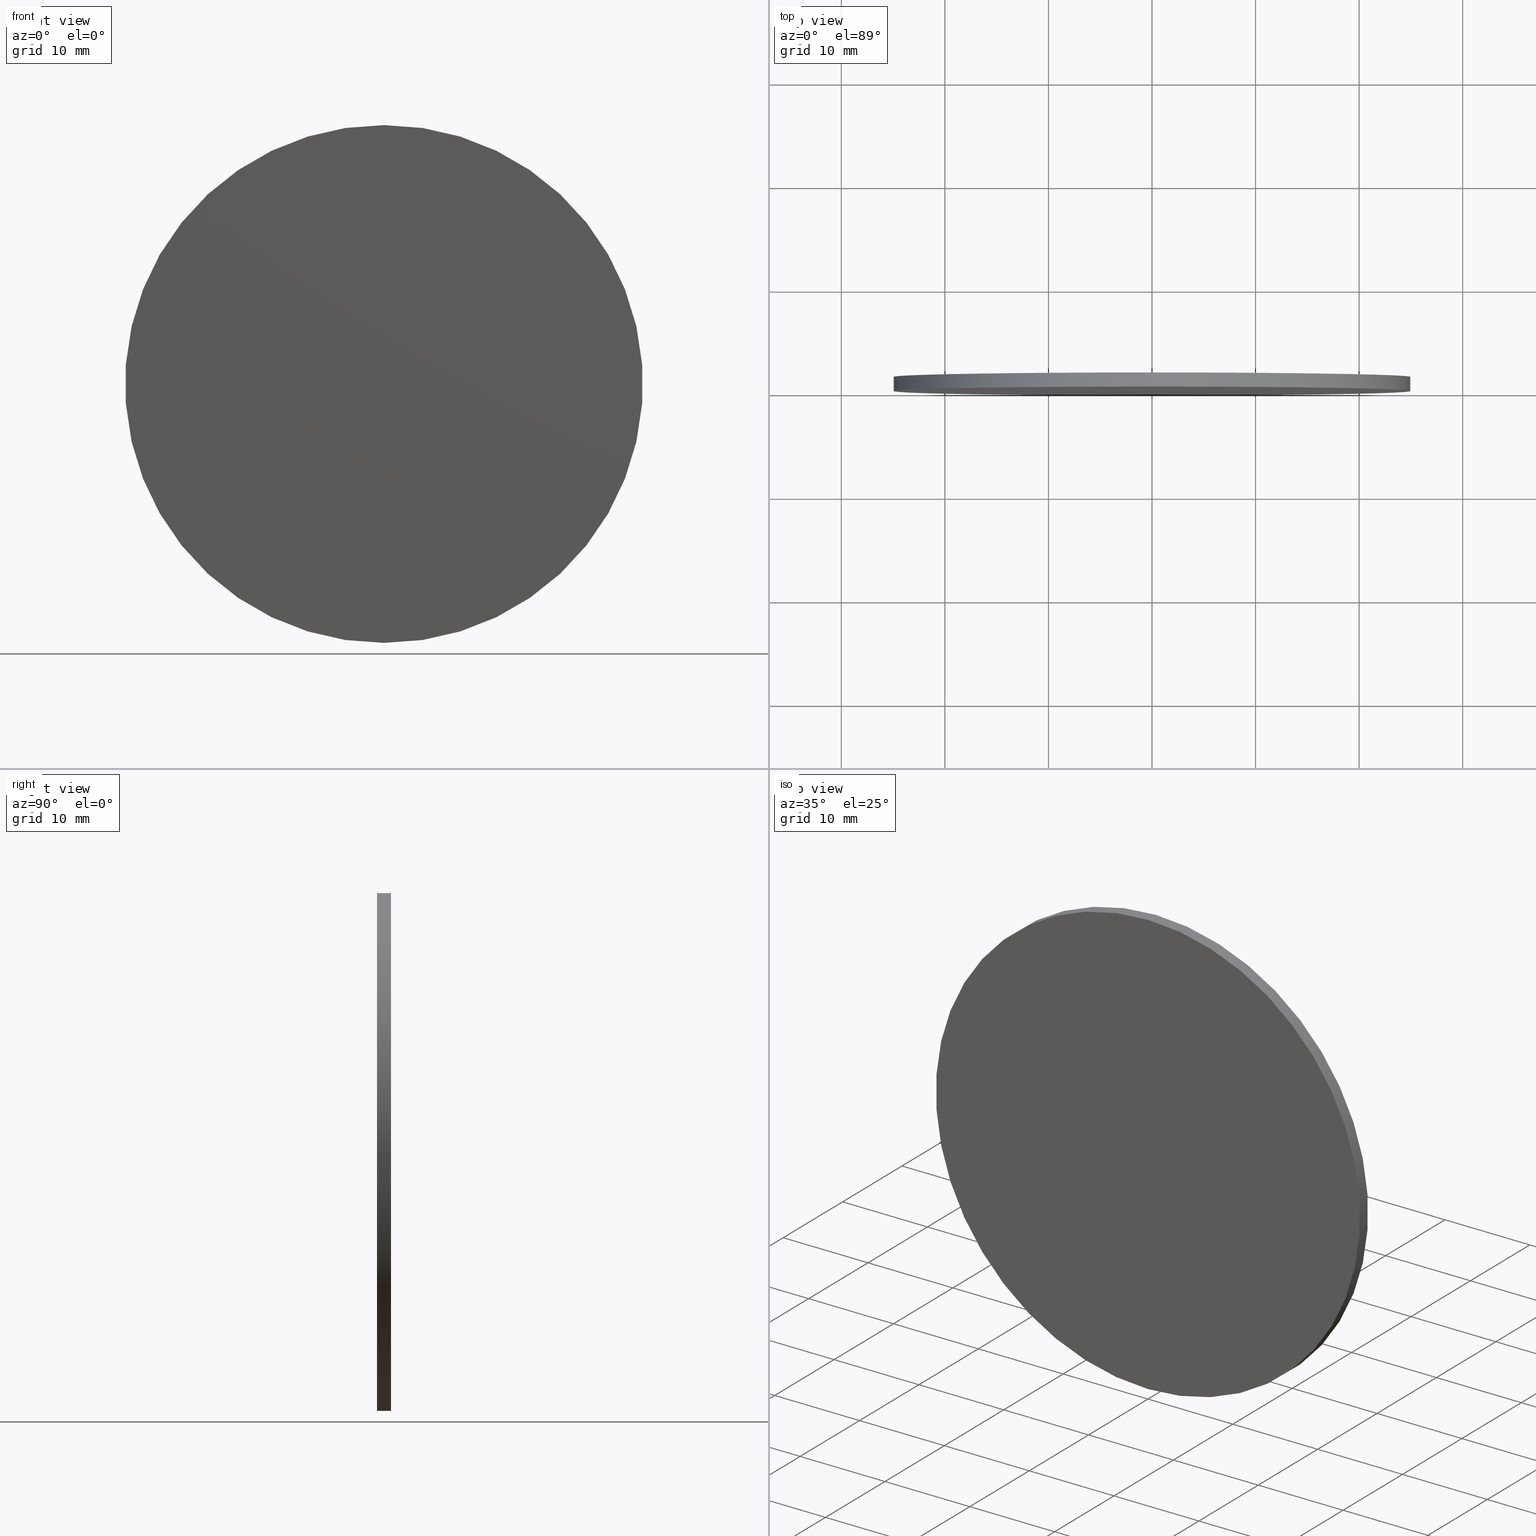
[diagram: canonical four-view strip — front | top / right | iso, engineering-drawing reading convention]
A machine part, canonical four-view strip (front | top / right | iso — engineering-drawing reading convention). The complete STEP part file that produces these views, byte-faithful:
ISO-10303-21;
HEADER;
FILE_DESCRIPTION (( 'STEP AP214' ),
    '1' );
FILE_NAME ('248598.STEP',
    '2019-08-06T05:23:08',
    ( 'user' ),
    ( '΢���й�' ),
    'SwSTEP 2.0',
    'SolidWorks 2016',
    '' );
FILE_SCHEMA (( 'AUTOMOTIVE_DESIGN' ));
ENDSEC;

DATA;
#1 = SURFACE_STYLE_USAGE ( .BOTH. , #41 ) ;
#2 = DIRECTION ( 'NONE',  ( 0.0000000000000000000, 0.0000000000000000000, -1.000000000000000000 ) ) ;
#3 = PRODUCT_DEFINITION_FORMATION_WITH_SPECIFIED_SOURCE ( '�κ�', '', #25, .NOT_KNOWN. ) ;
#4 =( LENGTH_UNIT ( ) NAMED_UNIT ( * ) SI_UNIT ( .MILLI., .METRE. ) );
#5 = AXIS2_PLACEMENT_3D ( 'NONE', #122, #13, #2 ) ;
#6 = ORIENTED_EDGE ( 'NONE', *, *, #52, .F. ) ;
#7 = DIRECTION ( 'NONE',  ( 0.0000000000000000000, 0.0000000000000000000, 1.000000000000000000 ) ) ;
#8 = EDGE_CURVE ( 'NONE', #28, #107, #33, .T. ) ;
#9 = DIRECTION ( 'NONE',  ( 0.0000000000000000000, 0.0000000000000000000, 1.000000000000000000 ) ) ;
#10 = ADVANCED_FACE ( 'NONE', ( #102 ), #108, .T. ) ;
#11 = FACE_OUTER_BOUND ( 'NONE', #50, .T. ) ;
#12 = AXIS2_PLACEMENT_3D ( 'NONE', #136, #95, #35 ) ;
#13 = DIRECTION ( 'NONE',  ( -0.0000000000000000000, -1.000000000000000000, -0.0000000000000000000 ) ) ;
#14 =( NAMED_UNIT ( * ) PLANE_ANGLE_UNIT ( ) SI_UNIT ( $, .RADIAN. ) );
#15 = DIRECTION ( 'NONE',  ( 0.0000000000000000000, 0.0000000000000000000, -1.000000000000000000 ) ) ;
#16 =( NAMED_UNIT ( * ) SI_UNIT ( $, .STERADIAN. ) SOLID_ANGLE_UNIT ( ) );
#17 = PRESENTATION_STYLE_ASSIGNMENT (( #72 ) ) ;
#18 = CIRCLE ( 'NONE', #92, 25.00000000000000000 ) ;
#19 = ADVANCED_FACE ( 'NONE', ( #11 ), #38, .F. ) ;
#20 = DIRECTION ( 'NONE',  ( 0.0000000000000000000, 1.000000000000000000, 0.0000000000000000000 ) ) ;
#21 = CARTESIAN_POINT ( 'NONE',  ( 0.0000000000000000000, 0.0000000000000000000, -25.00000000000000000 ) ) ;
#22 = LINE ( 'NONE', #75, #49 ) ;
#23 = APPLICATION_CONTEXT ( 'automotive_design' ) ;
#24 = APPLICATION_PROTOCOL_DEFINITION ( 'draft international standard', 'automotive_design', 1998, #32 ) ;
#25 = PRODUCT ( '248598', '248598', '', ( #126 ) ) ;
#26 = DIRECTION ( 'NONE',  ( 0.0000000000000000000, -0.0000000000000000000, 1.000000000000000000 ) ) ;
#27 = MECHANICAL_DESIGN_GEOMETRIC_PRESENTATION_REPRESENTATION (  '', ( #98 ), #69 ) ;
#28 = VERTEX_POINT ( 'NONE', #129 ) ;
#29 = MANIFOLD_SOLID_BREP ( '͹̨-����1', #54 ) ;
#30 = CYLINDRICAL_SURFACE ( 'NONE', #5, 25.00000000000000000 ) ;
#31 = DIRECTION ( 'NONE',  ( 0.0000000000000000000, 1.000000000000000000, 0.0000000000000000000 ) ) ;
#32 = APPLICATION_CONTEXT ( 'automotive_design' ) ;
#33 = CIRCLE ( 'NONE', #111, 25.00000000000000000 ) ;
#34 = APPLICATION_PROTOCOL_DEFINITION ( 'draft international standard', 'automotive_design', 1998, #23 ) ;
#35 = DIRECTION ( 'NONE',  ( 1.000000000000000000, 0.0000000000000000000, 0.0000000000000000000 ) ) ;
#36 = ORIENTED_EDGE ( 'NONE', *, *, #8, .T. ) ;
#37 = PRESENTATION_LAYER_ASSIGNMENT (  '', '', ( #98 ) ) ;
#38 = PLANE ( 'NONE',  #76 ) ;
#39 = DIRECTION ( 'NONE',  ( 0.0000000000000000000, 0.0000000000000000000, 1.000000000000000000 ) ) ;
#40 = ADVANCED_BREP_SHAPE_REPRESENTATION ( '248598', ( #29, #12 ), #60 ) ;
#41 = SURFACE_SIDE_STYLE ('',( #58 ) ) ;
#42 =( NAMED_UNIT ( * ) PLANE_ANGLE_UNIT ( ) SI_UNIT ( $, .RADIAN. ) );
#43 = COLOUR_RGB ( '',1.000000000000000000, 1.000000000000000000, 1.000000000000000000 ) ;
#44 = PRESENTATION_STYLE_ASSIGNMENT (( #1 ) ) ;
#45 = UNCERTAINTY_MEASURE_WITH_UNIT (LENGTH_MEASURE( 1.000000000000000100E-005 ), #132, 'distance_accuracy_value', 'NONE');
#46 = FILL_AREA_STYLE ('',( #73 ) ) ;
#47 = CARTESIAN_POINT ( 'NONE',  ( 0.0000000000000000000, 0.0000000000000000000, 0.0000000000000000000 ) ) ;
#48 = ORIENTED_EDGE ( 'NONE', *, *, #115, .F. ) ;
#49 = VECTOR ( 'NONE', #80, 1000.000000000000000 ) ;
#50 = EDGE_LOOP ( 'NONE', ( #56, #135 ) ) ;
#51 = PLANE ( 'NONE',  #137 ) ;
#52 = EDGE_CURVE ( 'NONE', #93, #28, #22, .T. ) ;
#53 = EDGE_LOOP ( 'NONE', ( #71, #62 ) ) ;
#54 = CLOSED_SHELL ( 'NONE', ( #79, #10, #123, #19 ) ) ;
#55 = CARTESIAN_POINT ( 'NONE',  ( 0.0000000000000000000, 1.360000000000000100, 0.0000000000000000000 ) ) ;
#56 = ORIENTED_EDGE ( 'NONE', *, *, #105, .F. ) ;
#57 = DIRECTION ( 'NONE',  ( 0.0000000000000000000, 0.0000000000000000000, 1.000000000000000000 ) ) ;
#58 = SURFACE_STYLE_FILL_AREA ( #46 ) ;
#59 = CARTESIAN_POINT ( 'NONE',  ( 0.0000000000000000000, 1.360000000000000100, -25.00000000000000000 ) ) ;
#60 =( GEOMETRIC_REPRESENTATION_CONTEXT ( 3 ) GLOBAL_UNCERTAINTY_ASSIGNED_CONTEXT ( ( #104 ) ) GLOBAL_UNIT_ASSIGNED_CONTEXT ( ( #4, #42, #16 ) ) REPRESENTATION_CONTEXT ( 'NONE', 'WORKASPACE' ) );
#61 =( NAMED_UNIT ( * ) PLANE_ANGLE_UNIT ( ) SI_UNIT ( $, .RADIAN. ) );
#62 = ORIENTED_EDGE ( 'NONE', *, *, #121, .T. ) ;
#63 = VECTOR ( 'NONE', #128, 1000.000000000000000 ) ;
#64 = CARTESIAN_POINT ( 'NONE',  ( 0.0000000000000000000, 1.360000000000000100, 0.0000000000000000000 ) ) ;
#65 = PRODUCT_DEFINITION_SHAPE ( 'NONE', 'NONE',  #130 ) ;
#66 = SURFACE_SIDE_STYLE ('',( #81 ) ) ;
#67 = ORIENTED_EDGE ( 'NONE', *, *, #105, .T. ) ;
#68 = PRESENTATION_LAYER_ASSIGNMENT (  '', '', ( #117 ) ) ;
#69 =( GEOMETRIC_REPRESENTATION_CONTEXT ( 3 ) GLOBAL_UNCERTAINTY_ASSIGNED_CONTEXT ( ( #94 ) ) GLOBAL_UNIT_ASSIGNED_CONTEXT ( ( #120, #14, #106 ) ) REPRESENTATION_CONTEXT ( 'NONE', 'WORKASPACE' ) );
#70 = CARTESIAN_POINT ( 'NONE',  ( 0.0000000000000000000, 1.360000000000000100, 0.0000000000000000000 ) ) ;
#71 = ORIENTED_EDGE ( 'NONE', *, *, #127, .T. ) ;
#72 = SURFACE_STYLE_USAGE ( .BOTH. , #66 ) ;
#73 = FILL_AREA_STYLE_COLOUR ( '', #131 ) ;
#74 = CARTESIAN_POINT ( 'NONE',  ( 0.0000000000000000000, 0.0000000000000000000, 0.0000000000000000000 ) ) ;
#75 = CARTESIAN_POINT ( 'NONE',  ( 3.061616997868383000E-015, 1.360000000000000100, 25.00000000000000000 ) ) ;
#76 = AXIS2_PLACEMENT_3D ( 'NONE', #74, #114, #26 ) ;
#77 = DIRECTION ( 'NONE',  ( 0.0000000000000000000, -0.0000000000000000000, 1.000000000000000000 ) ) ;
#78 = DIRECTION ( 'NONE',  ( 0.0000000000000000000, 1.000000000000000000, 0.0000000000000000000 ) ) ;
#79 = ADVANCED_FACE ( 'NONE', ( #124 ), #30, .T. ) ;
#80 = DIRECTION ( 'NONE',  ( -0.0000000000000000000, -1.000000000000000000, -0.0000000000000000000 ) ) ;
#81 = SURFACE_STYLE_FILL_AREA ( #134 ) ;
#82 =( GEOMETRIC_REPRESENTATION_CONTEXT ( 3 ) GLOBAL_UNCERTAINTY_ASSIGNED_CONTEXT ( ( #45 ) ) GLOBAL_UNIT_ASSIGNED_CONTEXT ( ( #132, #61, #89 ) ) REPRESENTATION_CONTEXT ( 'NONE', 'WORKASPACE' ) );
#83 = AXIS2_PLACEMENT_3D ( 'NONE', #103, #78, #39 ) ;
#84 = SHAPE_DEFINITION_REPRESENTATION ( #65, #40 ) ;
#85 = EDGE_LOOP ( 'NONE', ( #140, #138, #36, #48 ) ) ;
#86 = AXIS2_PLACEMENT_3D ( 'NONE', #70, #119, #15 ) ;
#87 = ORIENTED_EDGE ( 'NONE', *, *, #115, .T. ) ;
#88 = CIRCLE ( 'NONE', #83, 25.00000000000000000 ) ;
#89 =( NAMED_UNIT ( * ) SI_UNIT ( $, .STERADIAN. ) SOLID_ANGLE_UNIT ( ) );
#90 = FILL_AREA_STYLE_COLOUR ( '', #43 ) ;
#91 = MECHANICAL_DESIGN_GEOMETRIC_PRESENTATION_REPRESENTATION (  '', ( #117 ), #82 ) ;
#92 = AXIS2_PLACEMENT_3D ( 'NONE', #96, #112, #9 ) ;
#93 = VERTEX_POINT ( 'NONE', #139 ) ;
#94 = UNCERTAINTY_MEASURE_WITH_UNIT (LENGTH_MEASURE( 1.000000000000000100E-005 ), #120, 'distance_accuracy_value', 'NONE');
#95 = DIRECTION ( 'NONE',  ( 0.0000000000000000000, 0.0000000000000000000, 1.000000000000000000 ) ) ;
#96 = CARTESIAN_POINT ( 'NONE',  ( 0.0000000000000000000, 0.0000000000000000000, 0.0000000000000000000 ) ) ;
#97 = CARTESIAN_POINT ( 'NONE',  ( 0.0000000000000000000, 1.360000000000000100, -25.00000000000000000 ) ) ;
#98 = STYLED_ITEM ( 'NONE', ( #44 ), #29 ) ;
#99 = CIRCLE ( 'NONE', #118, 25.00000000000000000 ) ;
#100 = ORIENTED_EDGE ( 'NONE', *, *, #127, .F. ) ;
#101 = LINE ( 'NONE', #97, #63 ) ;
#102 = FACE_OUTER_BOUND ( 'NONE', #116, .T. ) ;
#103 = CARTESIAN_POINT ( 'NONE',  ( 0.0000000000000000000, 1.360000000000000100, 0.0000000000000000000 ) ) ;
#104 = UNCERTAINTY_MEASURE_WITH_UNIT (LENGTH_MEASURE( 1.000000000000000100E-005 ), #4, 'distance_accuracy_value', 'NONE');
#105 = EDGE_CURVE ( 'NONE', #107, #28, #18, .T. ) ;
#106 =( NAMED_UNIT ( * ) SI_UNIT ( $, .STERADIAN. ) SOLID_ANGLE_UNIT ( ) );
#107 = VERTEX_POINT ( 'NONE', #21 ) ;
#108 = CYLINDRICAL_SURFACE ( 'NONE', #86, 25.00000000000000000 ) ;
#109 = VERTEX_POINT ( 'NONE', #59 ) ;
#110 = PRODUCT_DEFINITION_CONTEXT ( 'detailed design', #32, 'design' ) ;
#111 = AXIS2_PLACEMENT_3D ( 'NONE', #47, #31, #7 ) ;
#112 = DIRECTION ( 'NONE',  ( 0.0000000000000000000, 1.000000000000000000, 0.0000000000000000000 ) ) ;
#113 = FACE_OUTER_BOUND ( 'NONE', #53, .T. ) ;
#114 = DIRECTION ( 'NONE',  ( 0.0000000000000000000, 1.000000000000000000, 0.0000000000000000000 ) ) ;
#115 = EDGE_CURVE ( 'NONE', #109, #107, #101, .T. ) ;
#116 = EDGE_LOOP ( 'NONE', ( #6, #100, #87, #67 ) ) ;
#117 = STYLED_ITEM ( 'NONE', ( #17 ), #40 ) ;
#118 = AXIS2_PLACEMENT_3D ( 'NONE', #64, #20, #57 ) ;
#119 = DIRECTION ( 'NONE',  ( -0.0000000000000000000, -1.000000000000000000, -0.0000000000000000000 ) ) ;
#120 =( LENGTH_UNIT ( ) NAMED_UNIT ( * ) SI_UNIT ( .MILLI., .METRE. ) );
#121 = EDGE_CURVE ( 'NONE', #93, #109, #99, .T. ) ;
#122 = CARTESIAN_POINT ( 'NONE',  ( 0.0000000000000000000, 1.360000000000000100, 0.0000000000000000000 ) ) ;
#123 = ADVANCED_FACE ( 'NONE', ( #113 ), #51, .T. ) ;
#124 = FACE_OUTER_BOUND ( 'NONE', #85, .T. ) ;
#125 = PRODUCT_RELATED_PRODUCT_CATEGORY ( 'part', '', ( #25 ) ) ;
#126 = PRODUCT_CONTEXT ( 'NONE', #23, 'mechanical' ) ;
#127 = EDGE_CURVE ( 'NONE', #109, #93, #88, .T. ) ;
#128 = DIRECTION ( 'NONE',  ( -0.0000000000000000000, -1.000000000000000000, -0.0000000000000000000 ) ) ;
#129 = CARTESIAN_POINT ( 'NONE',  ( 3.061616997868383000E-015, 0.0000000000000000000, 25.00000000000000000 ) ) ;
#130 = PRODUCT_DEFINITION ( 'δ֪', '', #3, #110 ) ;
#131 = COLOUR_RGB ( '',1.000000000000000000, 1.000000000000000000, 1.000000000000000000 ) ;
#132 =( LENGTH_UNIT ( ) NAMED_UNIT ( * ) SI_UNIT ( .MILLI., .METRE. ) );
#133 = DIRECTION ( 'NONE',  ( 0.0000000000000000000, 1.000000000000000000, 0.0000000000000000000 ) ) ;
#134 = FILL_AREA_STYLE ('',( #90 ) ) ;
#135 = ORIENTED_EDGE ( 'NONE', *, *, #8, .F. ) ;
#136 = CARTESIAN_POINT ( 'NONE',  ( 0.0000000000000000000, 0.0000000000000000000, 0.0000000000000000000 ) ) ;
#137 = AXIS2_PLACEMENT_3D ( 'NONE', #55, #133, #77 ) ;
#138 = ORIENTED_EDGE ( 'NONE', *, *, #52, .T. ) ;
#139 = CARTESIAN_POINT ( 'NONE',  ( 3.061616997868383000E-015, 1.360000000000000100, 25.00000000000000000 ) ) ;
#140 = ORIENTED_EDGE ( 'NONE', *, *, #121, .F. ) ;
ENDSEC;
END-ISO-10303-21;
